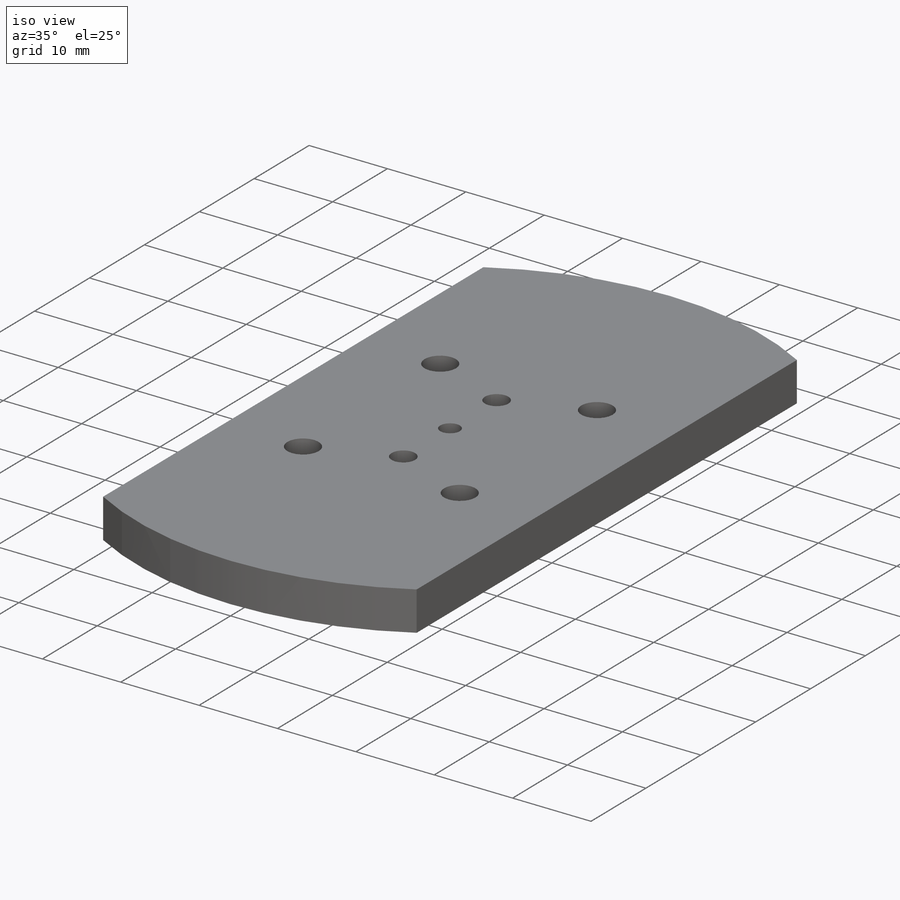
[diagram: iso view]
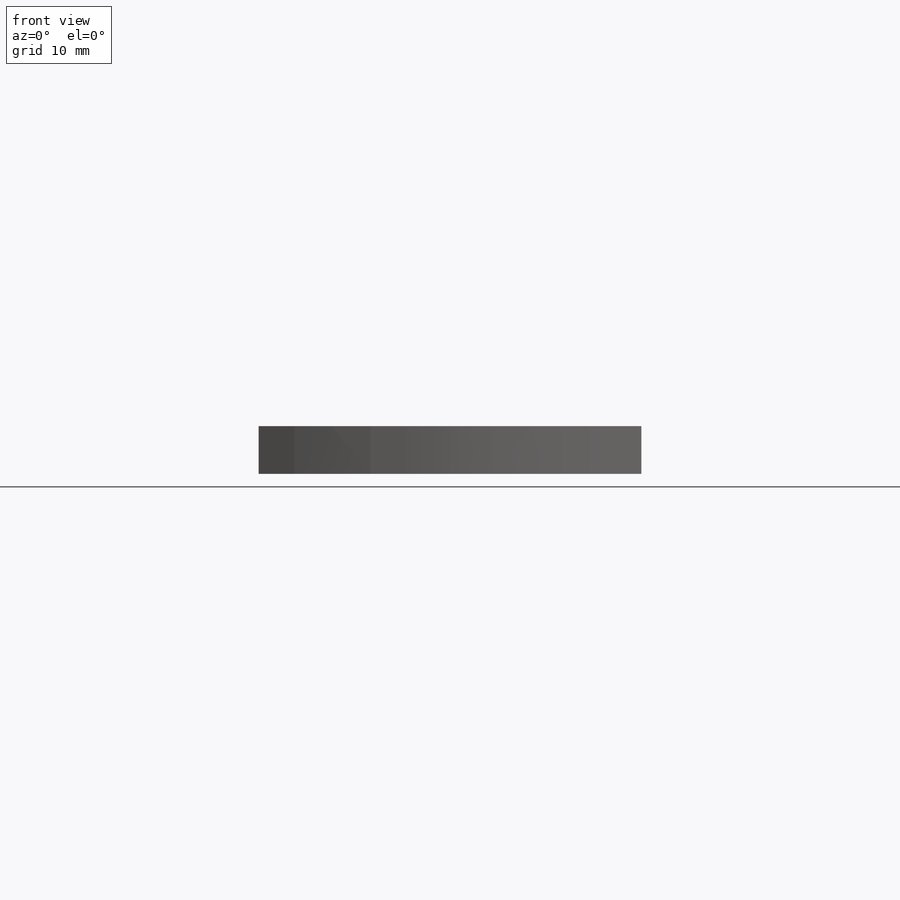
[diagram: front view]
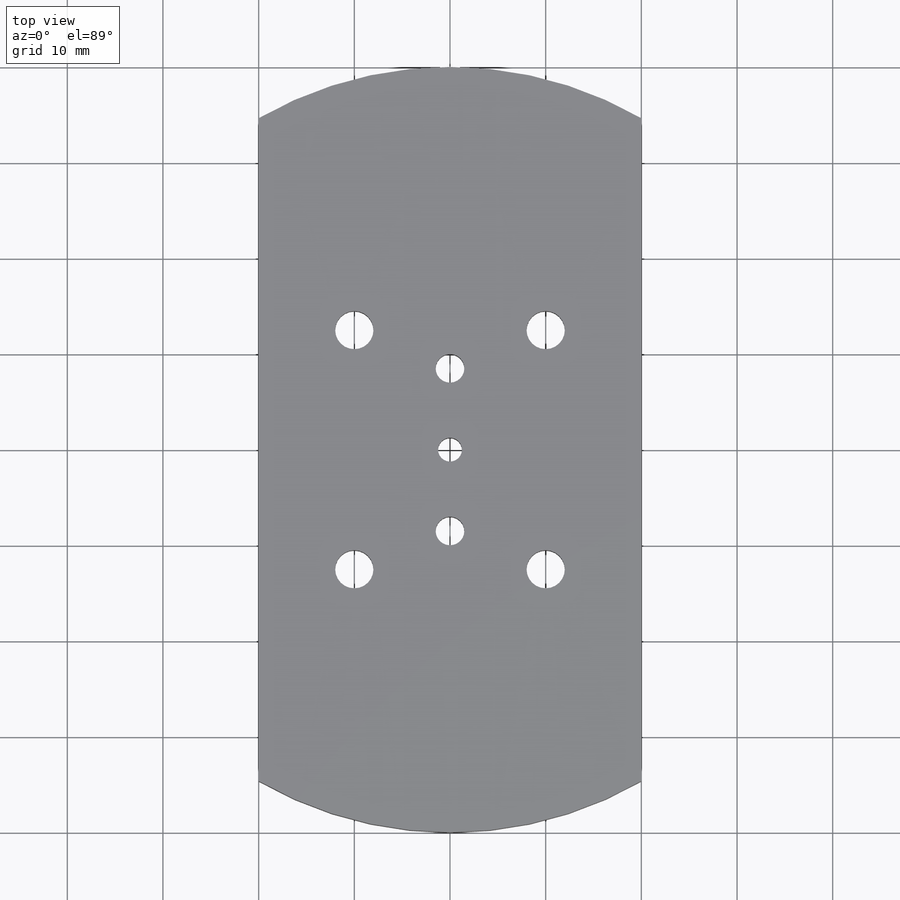
[diagram: top view]
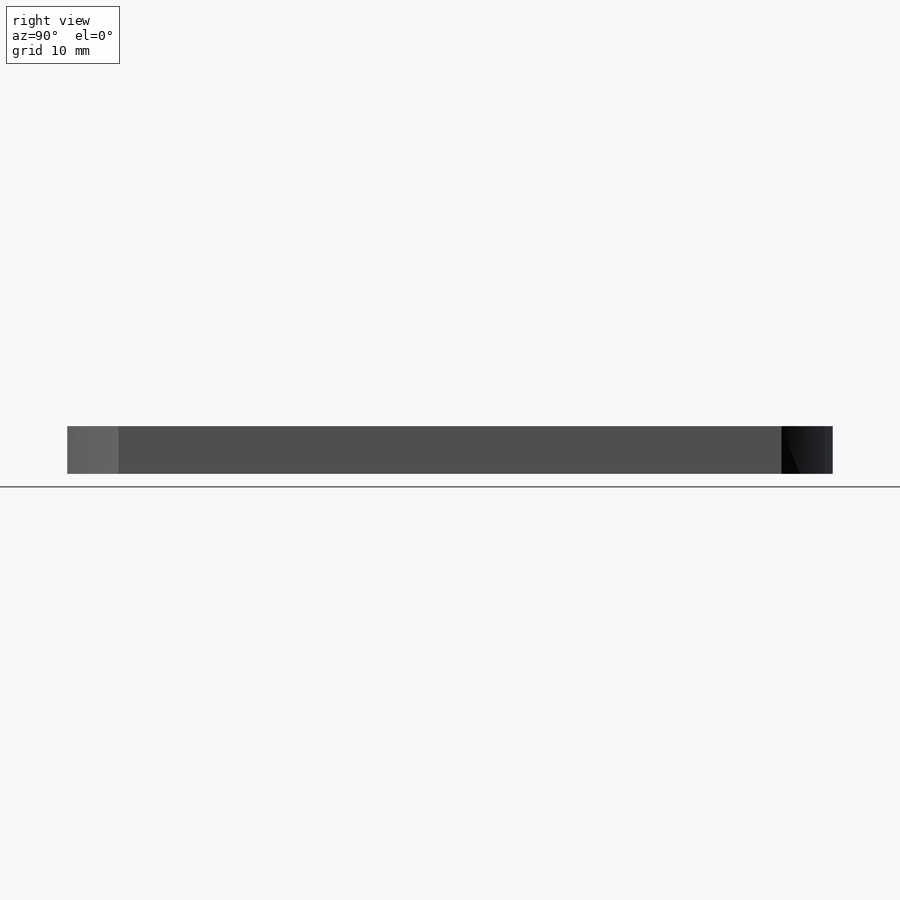
[diagram: right view]
SOLIDWORKS PART (.sldprt)
format: sldprt  version: not decoded by parser v0  size: 487,936 bytes
history: native  units: mm
features: sketch x6, cut_extrude x4, plane x3, mirror x2, material x1, extrude x1 (+10 scaffold rows collapsed)
feature tree (27):
  scaffold x10  (default folders/planes/origin — collapsed)
  material  "Balsa"
  plane  "Plan de face"
  plane  "Plan de dessus"
  plane  "Plan de droite"
  sketch  "Esquisse1"  dims[D1=40.0mm D2=80.0mm D3=20.0mm D4=40.0mm]
  extrude  "Boss.-Extru.1"  Depth=5mm
  sketch  "Esquisse2"  dims[c1.D1=3.0mm c1.D2=3.0mm c1.D3=4.0mm c1.D4=4.0mm c2.D3=17.0mm c2.D4=8.5mm c2.D5=80.0mm c3.D4=8.5mm]
  cut_extrude  "Enlèv. mat.-Extru.1"  Depth=5mm
  sketch  "Esquisse5"
  cut_extrude  "Enlèv. mat.-Extru.5"  Depth=10mm
  sketch  "Esquisse13"  dims[c1.D1=4.0mm c1.D2=4.0mm c1.D3=4.0mm c2.D2=12.5mm c2.D3=10.0mm]
  cut_extrude  "Enlèv. mat.-Extru.9"  Depth=5mm
  mirror  "Symétrie5"
  sketch  "Esquisse14"  dims[D1=2.5mm]
  mirror  "Symétrie6"
  sketch  "Esquisse15"  dims[D1=2.5mm]
  cut_extrude  "Enlèv. mat.-Extru.10"  Depth=10mm
decode coverage: 10 of 13 modeling features carry decoded parameters
note: suppression state not decoded; provenance and decode notes live in map.json
